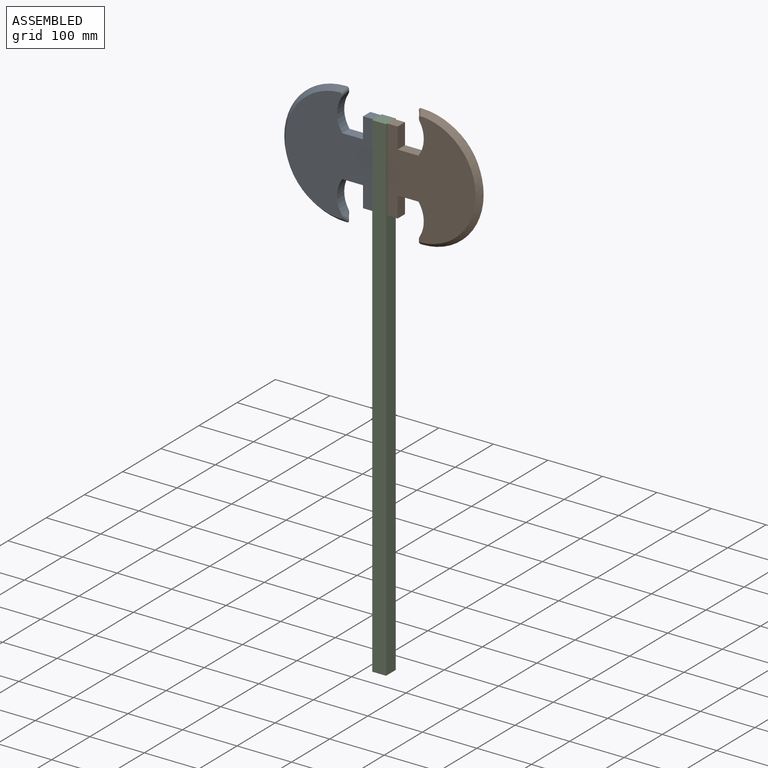
[diagram: assembled view]
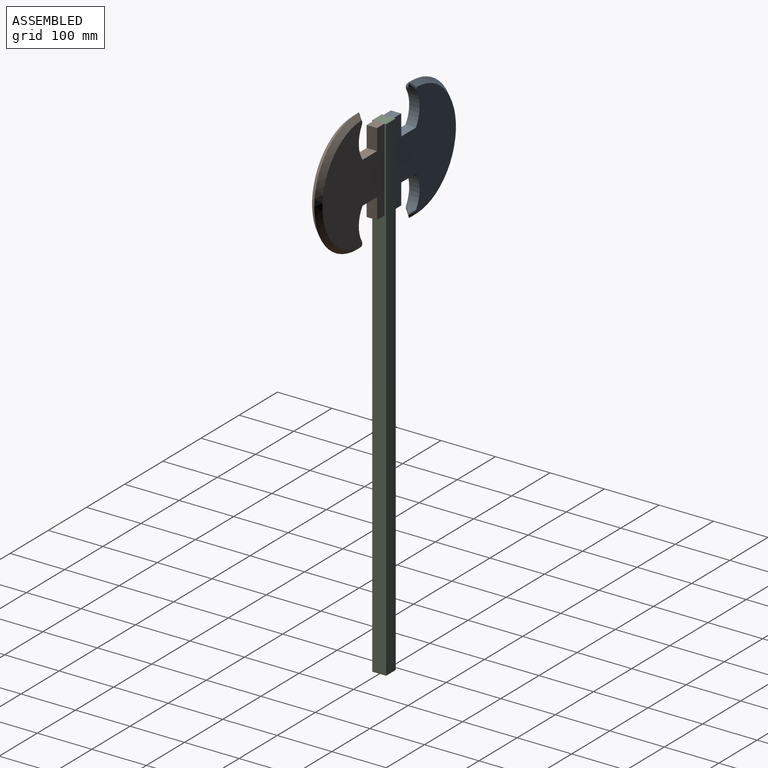
[diagram: assembled view, second angle]
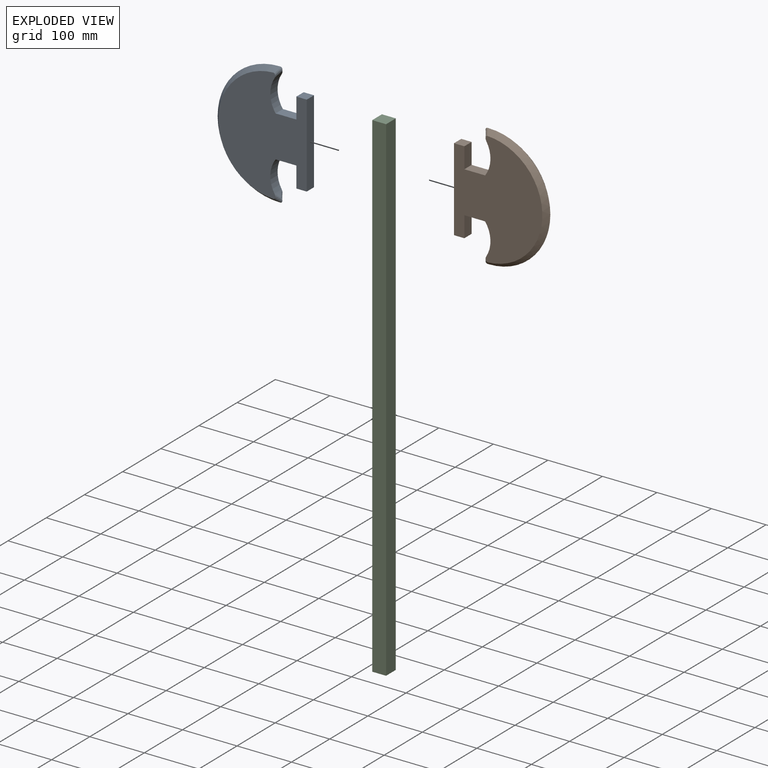
[diagram: exploded view]
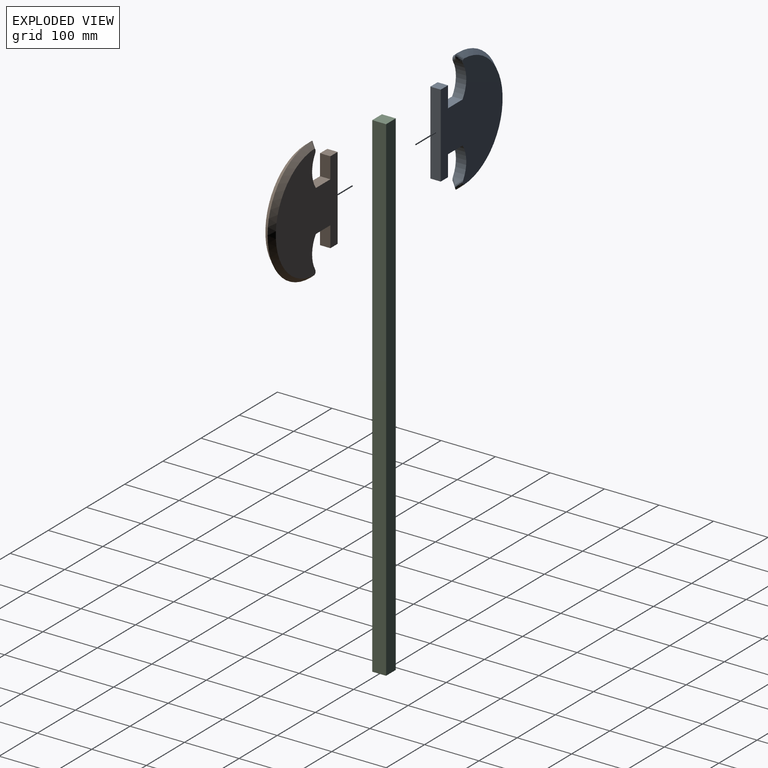
[diagram: exploded view, second angle]
ASSEMBLY  parts=3 mates=2
PART A: 21 faces, bbox 170.1x26.2x226.6 mm
  f0: plane 38.1x19.05mm, normal (1,0,0), area 725.8mm2, adj f1,f8,f9,f10
  f1: plane 38.1x19.05mm, normal (0,0,-1), area 725.8mm2, adj f0,f2,f9,f10
  f2: cylinder r=52.07mm len=64.69mm, axis (0,1,0), area 1245.4mm2, adj f1,f9,f10,f19,f20
  f3: cylinder r=52.07mm len=64.69mm, axis (0,1,0), area 1245.4mm2, adj f4,f9,f10,f17,f18
  f4: plane 38.1x19.05mm, normal (0,0,1), area 725.8mm2, adj f3,f5,f9,f10
  f5: plane 38.1x19.05mm, normal (1,0,0), area 725.8mm2, adj f4,f6,f9,f10
  f6: plane 19.05x19.05mm, normal (0,0,1), area 362.9mm2, adj f5,f7,f9,f10
  f7: plane 152.4x19.05mm, normal (-1,0,0), area 2903.2mm2, adj f6,f8,f9,f10
  f8: plane 19.05x19.05mm, normal (0,0,-1), area 362.9mm2, adj f0,f7,f9,f10
  f9: plane 209.42x162.11mm, normal (0,-1,0), area 22263.9mm2, adj f0,f1,f2,f3,f4,f5,f6,f7
  f10: plane 209.42x162.11mm, normal (0,1,0), area 22263.8mm2, adj f0,f1,f2,f3,f4,f5,f6,f7
  f11: plane 2.61x2.19mm, normal (0,-0.64,0.77), area 3.5mm2, adj f12,f13,f17
  f12: cone r=104.77mm half-angle=40deg, axis (0,1,0), area 4213.9mm2, adj f9,f11,f14,f15,f17,f19
  f13: plane 2.61x2.19mm, normal (0,0.64,0.77), area 3.5mm2, adj f11,f15,f18
  f14: plane 2.61x2.19mm, normal (0,-0.64,-0.77), area 3.5mm2, adj f12,f16,f19
  f15: cone r=114.3mm half-angle=40deg, axis (0,-1,0), area 4213.9mm2, adj f10,f12,f13,f16,f18,f20
  f16: plane 2.61x2.19mm, normal (0,0.64,-0.77), area 3.5mm2, adj f14,f15,f20
  f17: bspline ~17.8x16.99mm, area 142mm2, adj f3,f9,f11,f12,f18
  f18: bspline ~17.8x16.99mm, area 142mm2, adj f3,f10,f13,f15,f17
  f19: bspline ~17.8x16.99mm, area 141.9mm2, adj f2,f9,f12,f14,f20
  f20: bspline ~17.8x16.99mm, area 141.9mm2, adj f2,f10,f15,f16,f19
PART B: same geometry as A
PART C: 6 faces, bbox 25.4x25.4x914.4 mm
  f0: plane 914.4x25.4mm, normal (1,0,0), area 23225.8mm2, adj f1,f3,f4,f5
  f1: plane 25.4x25.4mm, normal (0,0,1), area 645.2mm2, adj f0,f2,f4,f5
  f2: plane 914.4x25.4mm, normal (-1,0,0), area 23225.8mm2, adj f1,f3,f4,f5
  f3: plane 25.4x25.4mm, normal (0,0,-1), area 645.2mm2, adj f0,f2,f4,f5
  f4: plane 914.4x25.4mm, normal (0,-1,0), area 23225.8mm2, adj f0,f1,f2,f3
  f5: plane 914.4x25.4mm, normal (0,1,0), area 23225.8mm2, adj f0,f1,f2,f3
PLACE A rot(axis=(0,-1,0),180deg) t=(-339.07,228.05,462.53)mm
PLACE B t=(-167.62,228.05,462.53)mm
PLACE C t=(-252.71,231.22,-284.84)mm
MATE fastened A.f7 <-> C.f2  axis (1,0,0) through (-266.04,218.52,538.73)mm
MATE fastened C.f0 <-> B.f7  axis (1,0,0) through (-240.64,218.52,538.73)mm
